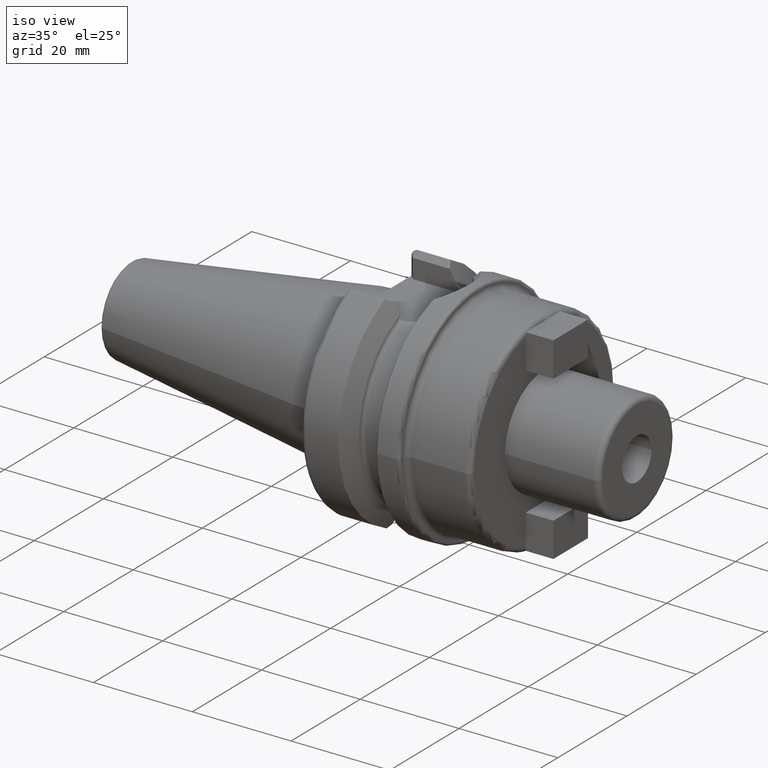
[diagram: clean part render]
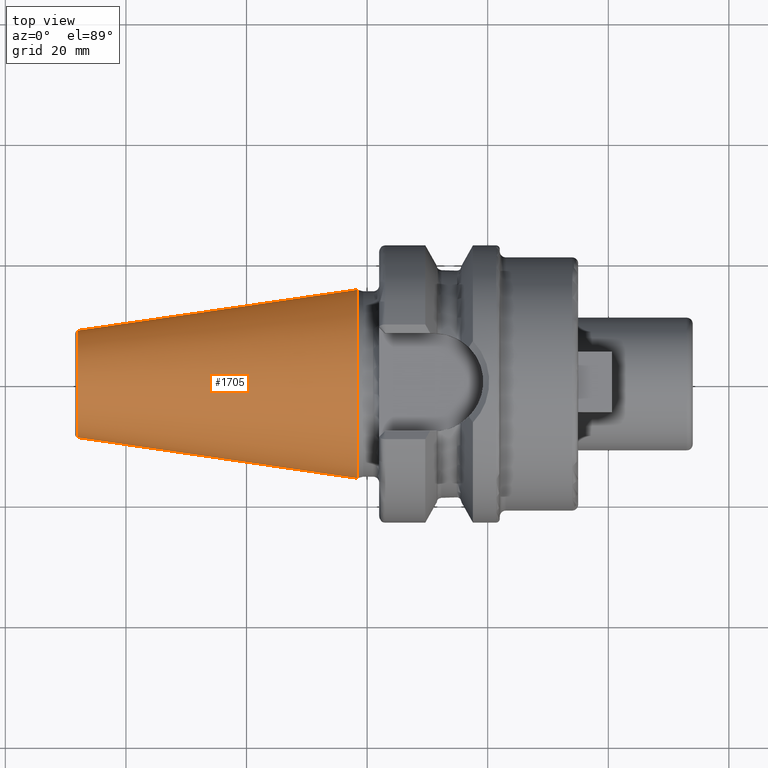
[diagram: tour spotlight — one face highlighted and labeled with its STEP entity id]
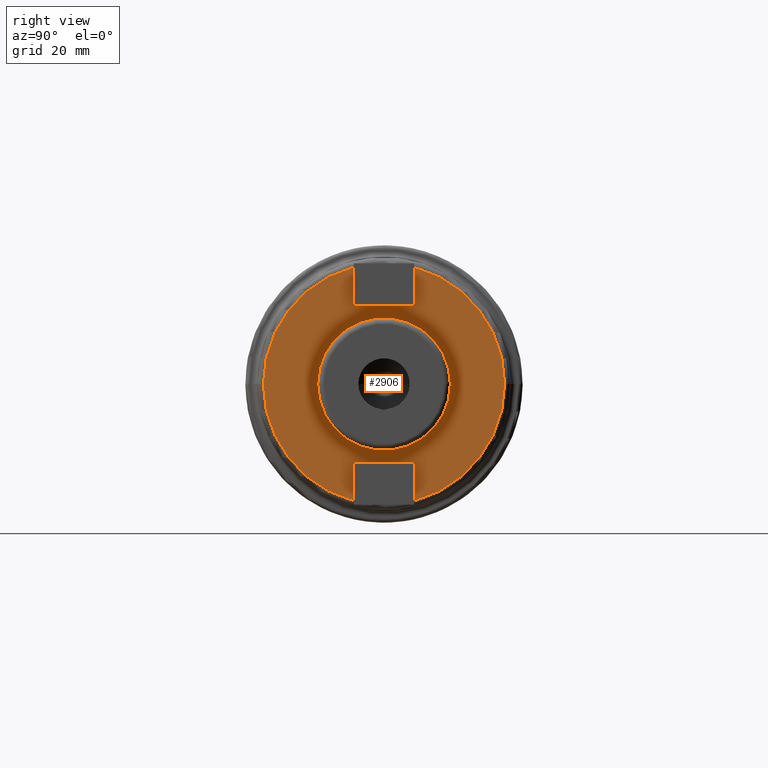
[diagram: tour spotlight — one face highlighted and labeled with its STEP entity id]
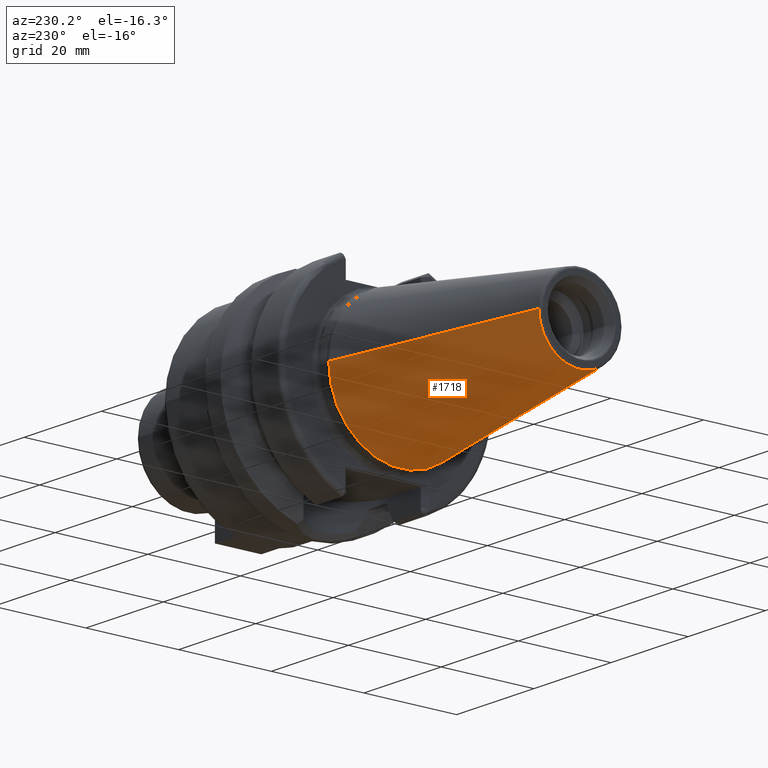
[diagram: tour spotlight — one face highlighted and labeled with its STEP entity id]
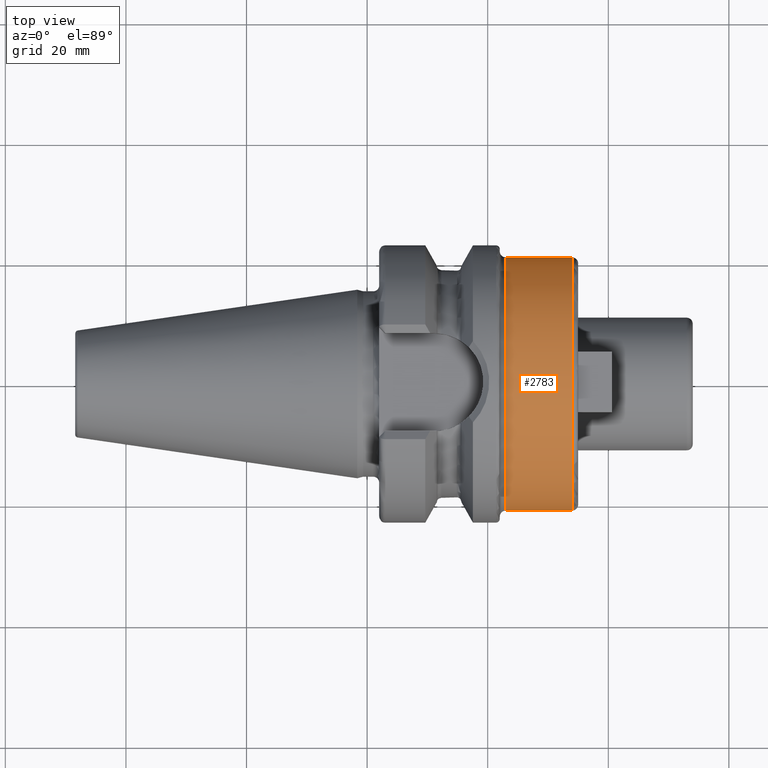
[diagram: tour spotlight — one face highlighted and labeled with its STEP entity id]
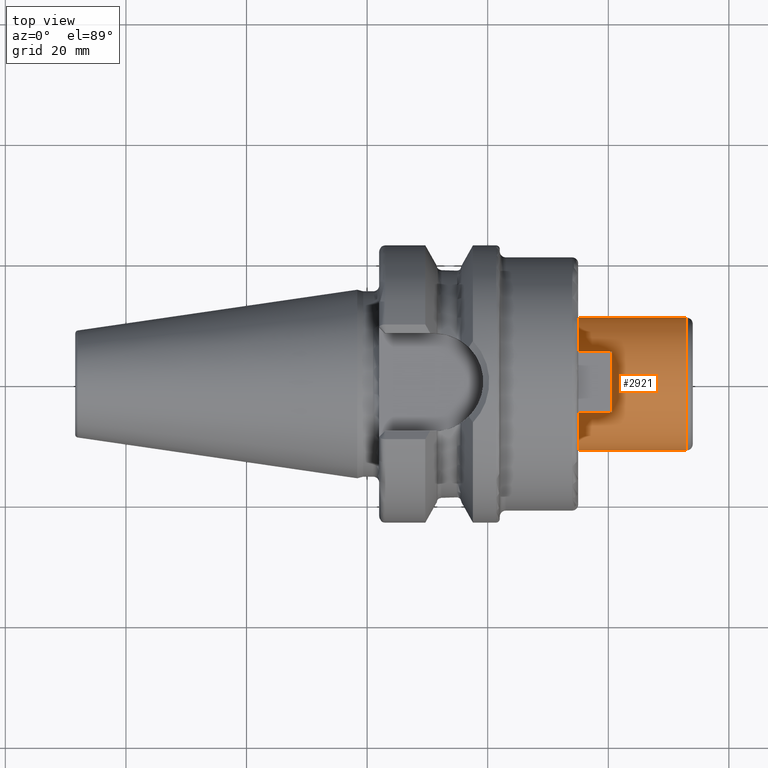
[diagram: tour spotlight — one face highlighted and labeled with its STEP entity id]
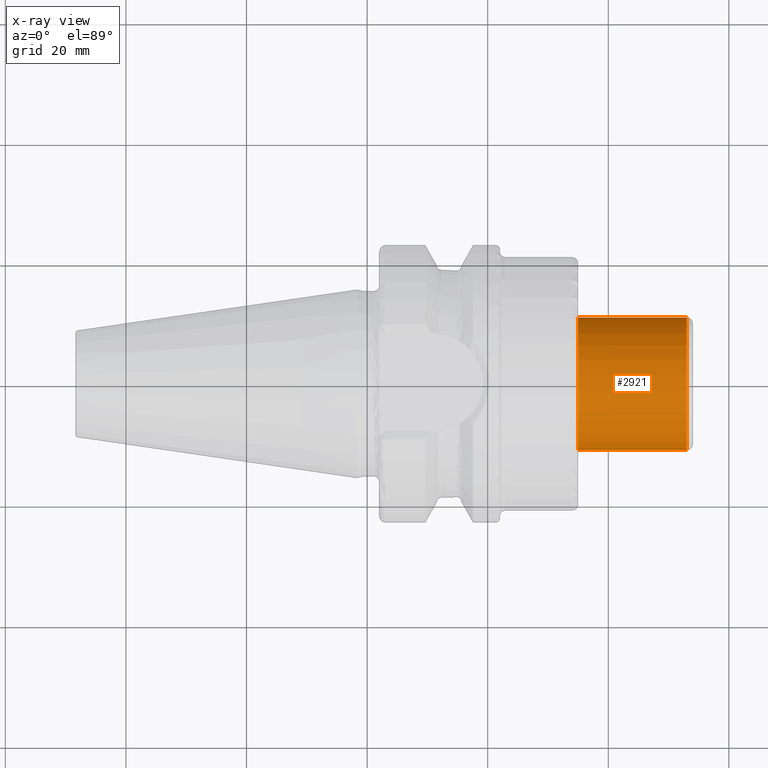
[diagram: x-ray of the same camera — body ghosted, this tour face saturated]
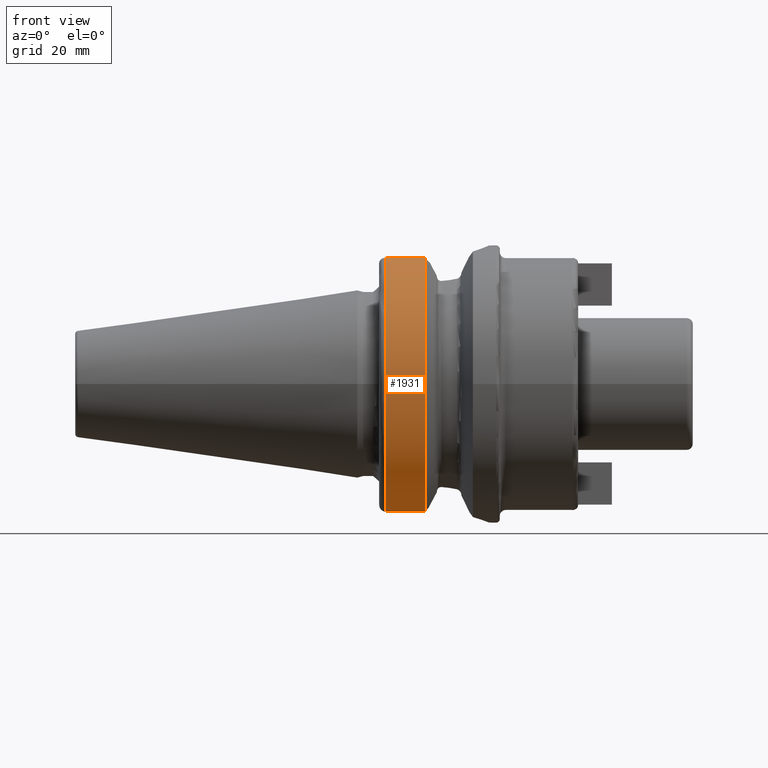
[diagram: tour spotlight — one face highlighted and labeled with its STEP entity id]
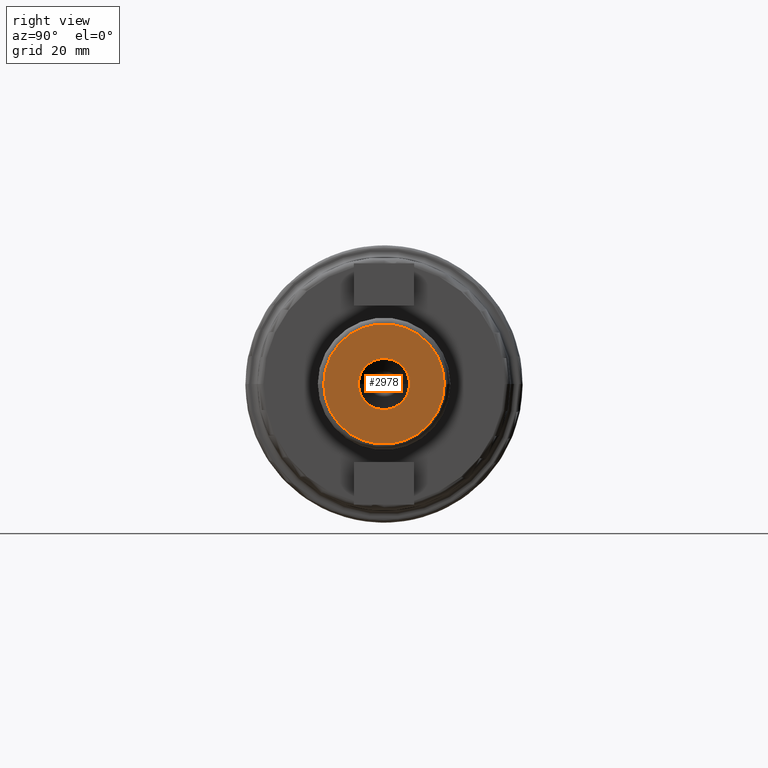
[diagram: tour spotlight — one face highlighted and labeled with its STEP entity id]
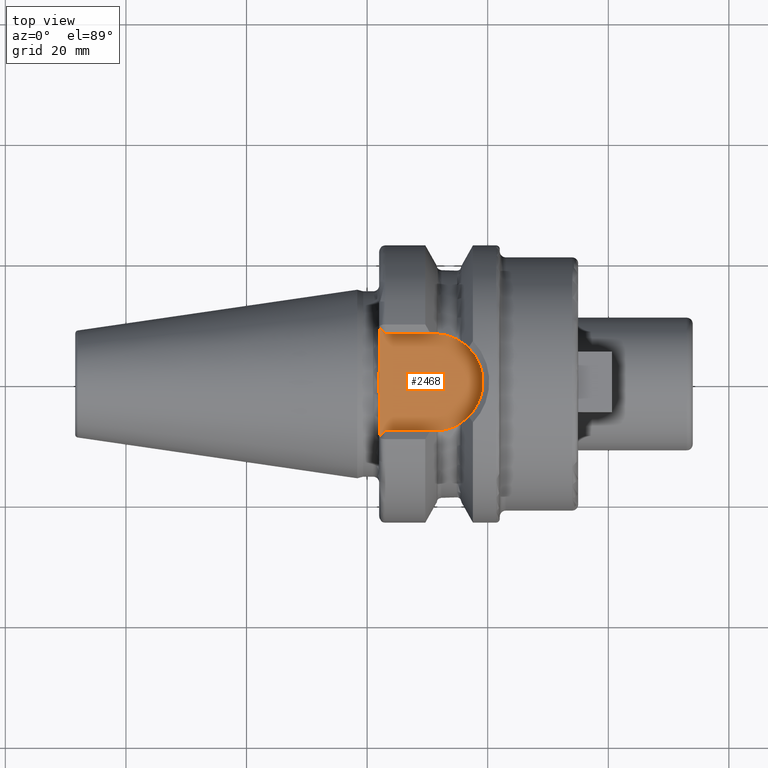
[diagram: tour spotlight — one face highlighted and labeled with its STEP entity id]
A machine part: a face-by-face anatomy tour. The part has 117 B-rep faces; the first image is the clean iso view, then the 8 largest visible faces are spotlighted one at a time (largest first), each with its STEP entity span.

Face 1 — top view, entity #1705. In plain terms, the highlighted conical surface has half-angle 8.298 deg.
Definition (entity closure, byte-faithful):
#37=CARTESIAN_POINT('',(-4.797215933459E1,0.E0,0.E0));
#38=DIRECTION('',(1.E0,0.E0,0.E0));
#39=DIRECTION('',(0.E0,1.E0,0.E0));
#40=AXIS2_PLACEMENT_3D('',#37,#38,#39);
#42=CARTESIAN_POINT('',(-1.629230650827E0,0.E0,0.E0));
#43=DIRECTION('',(1.E0,0.E0,0.E0));
#44=DIRECTION('',(0.E0,1.E0,0.E0));
#45=AXIS2_PLACEMENT_3D('',#42,#43,#44);
#47=DIRECTION('',(-9.895312636440E-1,-1.443186691705E-1,0.E0));
#48=VECTOR('',#47,4.683321324594E1);
#49=CARTESIAN_POINT('',(-1.629230650827E0,1.563738406209E1,0.E0));
#50=LINE('',#49,#48);
#51=DIRECTION('',(-9.895312636440E-1,1.443186691705E-1,0.E0));
#52=VECTOR('',#51,4.683321324594E1);
#53=CARTESIAN_POINT('',(-1.629230650827E0,-1.563738406209E1,0.E0));
#54=LINE('',#53,#52);
#1344=CARTESIAN_POINT('',(-4.797215933459E1,8.878477053461E0,0.E0));
#1346=VERTEX_POINT('',#1344);
#1348=CARTESIAN_POINT('',(-4.797215933459E1,-8.878477053461E0,0.E0));
#1350=VERTEX_POINT('',#1348);
#1559=CARTESIAN_POINT('',(-1.629230650827E0,1.563738406209E1,0.E0));
#1560=VERTEX_POINT('',#1559);
#1561=CARTESIAN_POINT('',(-1.629230650827E0,-1.563738406209E1,0.E0));
#1562=VERTEX_POINT('',#1561);
#1691=CARTESIAN_POINT('',(-2.480069499271E1,0.E0,0.E0));
#1692=DIRECTION('',(1.E0,0.E0,0.E0));
#1693=DIRECTION('',(0.E0,-1.E0,0.E0));
#1694=AXIS2_PLACEMENT_3D('',#1691,#1692,#1693);
#1695=CONICAL_SURFACE('',#1694,1.225793055778E1,8.297826828206E0);
#1697=ORIENTED_EDGE('',*,*,#1696,.F.);
#1699=ORIENTED_EDGE('',*,*,#1698,.T.);
#1701=ORIENTED_EDGE('',*,*,#1700,.T.);
#1702=ORIENTED_EDGE('',*,*,#1684,.F.);
#1703=EDGE_LOOP('',(#1697,#1699,#1701,#1702));
#1704=FACE_OUTER_BOUND('',#1703,.F.);
#1705=ADVANCED_FACE('',(#1704),#1695,.T.);
#41=CIRCLE('',#40,8.878477053461E0);
#46=CIRCLE('',#45,1.563738406209E1);
#1684=EDGE_CURVE('',#1346,#1350,#41,.T.);
#1696=EDGE_CURVE('',#1560,#1346,#50,.T.);
#1698=EDGE_CURVE('',#1560,#1562,#46,.T.);
#1700=EDGE_CURVE('',#1562,#1350,#54,.T.);

Face 2 — right view, entity #2906. In plain terms, the highlighted planar face has unit normal (1, 0, 0).
Definition (entity closure, byte-faithful):
#903=CARTESIAN_POINT('',(3.5E1,0.E0,0.E0));
#904=DIRECTION('',(1.E0,0.E0,0.E0));
#905=DIRECTION('',(0.E0,1.E0,0.E0));
#906=AXIS2_PLACEMENT_3D('',#903,#904,#905);
#908=CARTESIAN_POINT('',(3.5E1,0.E0,0.E0));
#909=DIRECTION('',(-1.E0,0.E0,0.E0));
#910=DIRECTION('',(0.E0,1.E0,0.E0));
#911=AXIS2_PLACEMENT_3D('',#908,#909,#910);
#913=DIRECTION('',(0.E0,0.E0,-1.E0));
#914=VECTOR('',#913,6.364916731037E0);
#915=CARTESIAN_POINT('',(3.5E1,-5.E0,1.936491673104E1));
#916=LINE('',#915,#914);
#917=DIRECTION('',(0.E0,1.E0,0.E0));
#918=VECTOR('',#917,1.E1);
#919=CARTESIAN_POINT('',(3.5E1,-5.E0,1.3E1));
#920=LINE('',#919,#918);
#921=DIRECTION('',(0.E0,0.E0,1.E0));
#922=VECTOR('',#921,6.364916731037E0);
#923=CARTESIAN_POINT('',(3.5E1,5.E0,1.3E1));
#924=LINE('',#923,#922);
#925=CARTESIAN_POINT('',(3.5E1,0.E0,0.E0));
#926=DIRECTION('',(-1.E0,0.E0,0.E0));
#927=DIRECTION('',(0.E0,2.5E-1,9.682458365519E-1));
#928=AXIS2_PLACEMENT_3D('',#925,#926,#927);
#930=CARTESIAN_POINT('',(3.5E1,0.E0,0.E0));
#931=DIRECTION('',(-1.E0,0.E0,0.E0));
#932=DIRECTION('',(0.E0,1.E0,0.E0));
#933=AXIS2_PLACEMENT_3D('',#930,#931,#932);
#935=DIRECTION('',(0.E0,0.E0,1.E0));
#936=VECTOR('',#935,6.364916731037E0);
#937=CARTESIAN_POINT('',(3.5E1,5.E0,-1.936491673104E1));
#938=LINE('',#937,#936);
#939=DIRECTION('',(0.E0,-1.E0,0.E0));
#940=VECTOR('',#939,1.E1);
#941=CARTESIAN_POINT('',(3.5E1,5.E0,-1.3E1));
#942=LINE('',#941,#940);
#943=DIRECTION('',(0.E0,0.E0,-1.E0));
#944=VECTOR('',#943,6.364916731037E0);
#945=CARTESIAN_POINT('',(3.5E1,-5.E0,-1.3E1));
#946=LINE('',#945,#944);
#947=CARTESIAN_POINT('',(3.5E1,0.E0,0.E0));
#948=DIRECTION('',(-1.E0,0.E0,0.E0));
#949=DIRECTION('',(0.E0,-2.5E-1,-9.682458365519E-1));
#950=AXIS2_PLACEMENT_3D('',#947,#948,#949);
#952=CARTESIAN_POINT('',(3.5E1,0.E0,0.E0));
#953=DIRECTION('',(-1.E0,0.E0,0.E0));
#954=DIRECTION('',(0.E0,-1.E0,0.E0));
#955=AXIS2_PLACEMENT_3D('',#952,#953,#954);
#1563=CARTESIAN_POINT('',(3.5E1,1.1E1,0.E0));
#1564=CARTESIAN_POINT('',(3.5E1,-1.1E1,0.E0));
#1565=VERTEX_POINT('',#1563);
#1566=VERTEX_POINT('',#1564);
#1587=CARTESIAN_POINT('',(3.5E1,-2.E1,-1.029243357209E-11));
#1588=VERTEX_POINT('',#1587);
#1589=CARTESIAN_POINT('',(3.5E1,2.E1,1.029643037498E-11));
#1590=VERTEX_POINT('',#1589);
#1625=CARTESIAN_POINT('',(3.5E1,-5.E0,1.936491673104E1));
#1626=CARTESIAN_POINT('',(3.5E1,-5.E0,1.3E1));
#1627=VERTEX_POINT('',#1625);
#1628=VERTEX_POINT('',#1626);
#1629=CARTESIAN_POINT('',(3.5E1,5.E0,1.3E1));
#1630=VERTEX_POINT('',#1629);
#1631=CARTESIAN_POINT('',(3.5E1,5.E0,1.936491673104E1));
#1632=VERTEX_POINT('',#1631);
#1633=CARTESIAN_POINT('',(3.5E1,-5.E0,-1.3E1));
#1634=CARTESIAN_POINT('',(3.5E1,-5.E0,-1.936491673104E1));
#1635=VERTEX_POINT('',#1633);
#1636=VERTEX_POINT('',#1634);
#1637=CARTESIAN_POINT('',(3.5E1,5.E0,-1.936491673104E1));
#1638=CARTESIAN_POINT('',(3.5E1,5.E0,-1.3E1));
#1639=VERTEX_POINT('',#1637);
#1640=VERTEX_POINT('',#1638);
#2876=CARTESIAN_POINT('',(3.5E1,0.E0,0.E0));
#2877=DIRECTION('',(1.E0,0.E0,0.E0));
#2878=DIRECTION('',(0.E0,-1.E0,0.E0));
#2879=AXIS2_PLACEMENT_3D('',#2876,#2877,#2878);
#2880=PLANE('',#2879);
#2882=ORIENTED_EDGE('',*,*,#2881,.T.);
#2884=ORIENTED_EDGE('',*,*,#2883,.T.);
#2885=ORIENTED_EDGE('',*,*,#2864,.T.);
#2886=ORIENTED_EDGE('',*,*,#2800,.T.);
#2888=ORIENTED_EDGE('',*,*,#2887,.T.);
#2890=ORIENTED_EDGE('',*,*,#2889,.T.);
#2892=ORIENTED_EDGE('',*,*,#2891,.T.);
#2894=ORIENTED_EDGE('',*,*,#2893,.T.);
#2896=ORIENTED_EDGE('',*,*,#2895,.T.);
#2897=ORIENTED_EDGE('',*,*,#2793,.T.);
#2898=EDGE_LOOP('',(#2882,#2884,#2885,#2886,#2888,#2890,#2892,#2894,#2896,
#2897));
#2899=FACE_OUTER_BOUND('',#2898,.F.);
#2901=ORIENTED_EDGE('',*,*,#2900,.T.);
#2903=ORIENTED_EDGE('',*,*,#2902,.F.);
#2904=EDGE_LOOP('',(#2901,#2903));
#2905=FACE_BOUND('',#2904,.F.);
#2906=ADVANCED_FACE('',(#2899,#2905),#2880,.T.);
#907=CIRCLE('',#906,1.1E1);
#912=CIRCLE('',#911,1.1E1);
#929=CIRCLE('',#928,2.E1);
#934=CIRCLE('',#933,2.E1);
#951=CIRCLE('',#950,2.E1);
#956=CIRCLE('',#955,2.E1);
#2793=EDGE_CURVE('',#1588,#1627,#956,.T.);
#2800=EDGE_CURVE('',#1632,#1590,#929,.T.);
#2864=EDGE_CURVE('',#1630,#1632,#924,.T.);
#2881=EDGE_CURVE('',#1627,#1628,#916,.T.);
#2883=EDGE_CURVE('',#1628,#1630,#920,.T.);
#2887=EDGE_CURVE('',#1590,#1639,#934,.T.);
#2889=EDGE_CURVE('',#1639,#1640,#938,.T.);
#2891=EDGE_CURVE('',#1640,#1635,#942,.T.);
#2893=EDGE_CURVE('',#1635,#1636,#946,.T.);
#2895=EDGE_CURVE('',#1636,#1588,#951,.T.);
#2900=EDGE_CURVE('',#1565,#1566,#907,.T.);
#2902=EDGE_CURVE('',#1565,#1566,#912,.T.);

Face 3 — auxiliary view, entity #1718. In plain terms, the highlighted conical surface has half-angle 8.298 deg.
Definition (entity closure, byte-faithful):
#32=CARTESIAN_POINT('',(-4.797215933459E1,0.E0,0.E0));
#33=DIRECTION('',(-1.E0,0.E0,0.E0));
#34=DIRECTION('',(0.E0,1.E0,0.E0));
#35=AXIS2_PLACEMENT_3D('',#32,#33,#34);
#47=DIRECTION('',(-9.895312636440E-1,-1.443186691705E-1,0.E0));
#48=VECTOR('',#47,4.683321324594E1);
#49=CARTESIAN_POINT('',(-1.629230650827E0,1.563738406209E1,0.E0));
#50=LINE('',#49,#48);
#51=DIRECTION('',(-9.895312636440E-1,1.443186691705E-1,0.E0));
#52=VECTOR('',#51,4.683321324594E1);
#53=CARTESIAN_POINT('',(-1.629230650827E0,-1.563738406209E1,0.E0));
#54=LINE('',#53,#52);
#55=CARTESIAN_POINT('',(-1.629230650827E0,0.E0,0.E0));
#56=DIRECTION('',(-1.E0,0.E0,0.E0));
#57=DIRECTION('',(0.E0,1.E0,0.E0));
#58=AXIS2_PLACEMENT_3D('',#55,#56,#57);
#1344=CARTESIAN_POINT('',(-4.797215933459E1,8.878477053461E0,0.E0));
#1346=VERTEX_POINT('',#1344);
#1348=CARTESIAN_POINT('',(-4.797215933459E1,-8.878477053461E0,0.E0));
#1350=VERTEX_POINT('',#1348);
#1559=CARTESIAN_POINT('',(-1.629230650827E0,1.563738406209E1,0.E0));
#1560=VERTEX_POINT('',#1559);
#1561=CARTESIAN_POINT('',(-1.629230650827E0,-1.563738406209E1,0.E0));
#1562=VERTEX_POINT('',#1561);
#1706=CARTESIAN_POINT('',(-2.480069499271E1,0.E0,0.E0));
#1707=DIRECTION('',(1.E0,0.E0,0.E0));
#1708=DIRECTION('',(0.E0,-1.E0,0.E0));
#1709=AXIS2_PLACEMENT_3D('',#1706,#1707,#1708);
#1710=CONICAL_SURFACE('',#1709,1.225793055778E1,8.297826828206E0);
#1711=ORIENTED_EDGE('',*,*,#1696,.T.);
#1712=ORIENTED_EDGE('',*,*,#1673,.T.);
#1713=ORIENTED_EDGE('',*,*,#1700,.F.);
#1715=ORIENTED_EDGE('',*,*,#1714,.F.);
#1716=EDGE_LOOP('',(#1711,#1712,#1713,#1715));
#1717=FACE_OUTER_BOUND('',#1716,.F.);
#1718=ADVANCED_FACE('',(#1717),#1710,.T.);
#36=CIRCLE('',#35,8.878477053461E0);
#59=CIRCLE('',#58,1.563738406209E1);
#1673=EDGE_CURVE('',#1346,#1350,#36,.T.);
#1696=EDGE_CURVE('',#1560,#1346,#50,.T.);
#1700=EDGE_CURVE('',#1562,#1350,#54,.T.);
#1714=EDGE_CURVE('',#1560,#1562,#59,.T.);

Face 4 — top view, entity #2783. In plain terms, the highlighted cylindrical surface (partial cylindrical patch) has radius 21 mm, axis along (1, 0, 0).
Definition (entity closure, byte-faithful):
#842=CARTESIAN_POINT('',(3.4E1,0.E0,0.E0));
#843=DIRECTION('',(-1.E0,0.E0,0.E0));
#844=DIRECTION('',(0.E0,-1.E0,0.E0));
#845=AXIS2_PLACEMENT_3D('',#842,#843,#844);
#847=CARTESIAN_POINT('',(2.3E1,0.E0,0.E0));
#848=DIRECTION('',(1.E0,0.E0,0.E0));
#849=DIRECTION('',(0.E0,1.E0,0.E0));
#850=AXIS2_PLACEMENT_3D('',#847,#848,#849);
#1111=DIRECTION('',(-1.E0,0.E0,2.562640756164E-13));
#1112=VECTOR('',#1111,1.1E1);
#1113=CARTESIAN_POINT('',(3.4E1,2.1E1,-3.289083261722E-13));
#1114=LINE('',#1113,#1112);
#1120=DIRECTION('',(-1.E0,0.E0,-2.562534397283E-13));
#1121=VECTOR('',#1120,1.1E1);
#1122=CARTESIAN_POINT('',(3.4E1,-2.1E1,3.282385974539E-13));
#1123=LINE('',#1122,#1121);
#1571=CARTESIAN_POINT('',(2.3E1,-2.1E1,0.E0));
#1572=CARTESIAN_POINT('',(2.3E1,2.1E1,0.E0));
#1573=VERTEX_POINT('',#1571);
#1574=VERTEX_POINT('',#1572);
#1575=CARTESIAN_POINT('',(3.4E1,2.1E1,0.E0));
#1576=CARTESIAN_POINT('',(3.4E1,-2.1E1,0.E0));
#1577=VERTEX_POINT('',#1575);
#1578=VERTEX_POINT('',#1576);
#2769=CARTESIAN_POINT('',(2.04E1,0.E0,0.E0));
#2770=DIRECTION('',(1.E0,0.E0,0.E0));
#2771=DIRECTION('',(0.E0,-1.E0,0.E0));
#2772=AXIS2_PLACEMENT_3D('',#2769,#2770,#2771);
#2773=CYLINDRICAL_SURFACE('',#2772,2.1E1);
#2775=ORIENTED_EDGE('',*,*,#2774,.F.);
#2777=ORIENTED_EDGE('',*,*,#2776,.T.);
#2778=ORIENTED_EDGE('',*,*,#2763,.F.);
#2780=ORIENTED_EDGE('',*,*,#2779,.F.);
#2781=EDGE_LOOP('',(#2775,#2777,#2778,#2780));
#2782=FACE_OUTER_BOUND('',#2781,.F.);
#2783=ADVANCED_FACE('',(#2782),#2773,.T.);
#846=CIRCLE('',#845,2.1E1);
#851=CIRCLE('',#850,2.1E1);
#2763=EDGE_CURVE('',#1574,#1573,#851,.T.);
#2774=EDGE_CURVE('',#1578,#1577,#846,.T.);
#2776=EDGE_CURVE('',#1578,#1573,#1123,.T.);
#2779=EDGE_CURVE('',#1577,#1574,#1114,.T.);

Face 5 — top view, entity #2921. An x-ray twin of the same camera follows (body ghosted, this face saturated) — the face is partly hidden behind the body. In plain terms, the highlighted cylindrical surface (partial cylindrical patch) has radius 11 mm, axis along (1, 0, 0).
Definition (entity closure, byte-faithful):
#903=CARTESIAN_POINT('',(3.5E1,0.E0,0.E0));
#904=DIRECTION('',(1.E0,0.E0,0.E0));
#905=DIRECTION('',(0.E0,1.E0,0.E0));
#906=AXIS2_PLACEMENT_3D('',#903,#904,#905);
#957=CARTESIAN_POINT('',(5.3E1,0.E0,0.E0));
#958=DIRECTION('',(-1.E0,0.E0,0.E0));
#959=DIRECTION('',(0.E0,-1.E0,0.E0));
#960=AXIS2_PLACEMENT_3D('',#957,#958,#959);
#977=DIRECTION('',(-1.E0,0.E0,3.997934565862E-14));
#978=VECTOR('',#977,1.8E1);
#979=CARTESIAN_POINT('',(5.3E1,1.1E1,-7.187301475359E-13));
#980=LINE('',#979,#978);
#981=DIRECTION('',(-1.E0,0.E0,-3.996063577697E-14));
#982=VECTOR('',#981,1.8E1);
#983=CARTESIAN_POINT('',(5.3E1,-1.1E1,7.183933696661E-13));
#984=LINE('',#983,#982);
#1563=CARTESIAN_POINT('',(3.5E1,1.1E1,0.E0));
#1564=CARTESIAN_POINT('',(3.5E1,-1.1E1,0.E0));
#1565=VERTEX_POINT('',#1563);
#1566=VERTEX_POINT('',#1564);
#1579=CARTESIAN_POINT('',(5.3E1,1.1E1,0.E0));
#1580=CARTESIAN_POINT('',(5.3E1,-1.1E1,0.E0));
#1581=VERTEX_POINT('',#1579);
#1582=VERTEX_POINT('',#1580);
#2907=CARTESIAN_POINT('',(2.04E1,0.E0,0.E0));
#2908=DIRECTION('',(1.E0,0.E0,0.E0));
#2909=DIRECTION('',(0.E0,-1.E0,0.E0));
#2910=AXIS2_PLACEMENT_3D('',#2907,#2908,#2909);
#2911=CYLINDRICAL_SURFACE('',#2910,1.1E1);
#2913=ORIENTED_EDGE('',*,*,#2912,.F.);
#2915=ORIENTED_EDGE('',*,*,#2914,.T.);
#2916=ORIENTED_EDGE('',*,*,#2900,.F.);
#2918=ORIENTED_EDGE('',*,*,#2917,.F.);
#2919=EDGE_LOOP('',(#2913,#2915,#2916,#2918));
#2920=FACE_OUTER_BOUND('',#2919,.F.);
#2921=ADVANCED_FACE('',(#2920),#2911,.T.);
#907=CIRCLE('',#906,1.1E1);
#961=CIRCLE('',#960,1.1E1);
#2900=EDGE_CURVE('',#1565,#1566,#907,.T.);
#2912=EDGE_CURVE('',#1582,#1581,#961,.T.);
#2914=EDGE_CURVE('',#1582,#1566,#984,.T.);
#2917=EDGE_CURVE('',#1581,#1565,#980,.T.);

Face 6 — front view, entity #1931. In plain terms, the highlighted cylindrical surface (partial cylindrical patch) has radius 22.99 mm, axis along (1, 0, 0).
Definition (entity closure, byte-faithful):
#190=CARTESIAN_POINT('',(9.650924158743E0,0.E0,0.E0));
#191=DIRECTION('',(1.E0,0.E0,0.E0));
#192=DIRECTION('',(0.E0,-4.135970895862E-1,9.104600197075E-1));
#193=AXIS2_PLACEMENT_3D('',#190,#191,#192);
#195=DIRECTION('',(9.999999999953E-1,1.691137854943E-6,-2.559578267743E-6));
#196=VECTOR('',#195,6.650924186073E0);
#197=CARTESIAN_POINT('',(2.999999972701E0,-9.014923952472E0,-2.114877606078E1));
#198=LINE('',#197,#196);
#199=CARTESIAN_POINT('',(3.E0,0.E0,0.E0));
#200=DIRECTION('',(-1.E0,0.E0,0.E0));
#201=DIRECTION('',(0.E0,-3.921232146517E-1,-9.199127048428E-1));
#202=AXIS2_PLACEMENT_3D('',#199,#200,#201);
#204=DIRECTION('',(-9.999999999877E-1,2.689360368572E-6,4.174830096868E-6));
#205=VECTOR('',#204,6.650924175867E0);
#206=CARTESIAN_POINT('',(9.650924158743E0,-9.508597089586E0,2.093147585308E1));
#207=LINE('',#206,#205);
#612=CARTESIAN_POINT('',(2.999999972701E0,-9.014923952472E0,-2.114877606078E1));
#1510=CARTESIAN_POINT('',(9.650924158743E0,-9.508597089586E0,2.093147585308E1));
#1511=CARTESIAN_POINT('',(9.650924158743E0,-9.014912704843E0,
-2.114879308434E1));
#1512=VERTEX_POINT('',#1510);
#1513=VERTEX_POINT('',#1511);
#1526=CARTESIAN_POINT('',(3.E0,-9.508621994147E0,2.093146453960E1));
#1527=VERTEX_POINT('',#1526);
#1548=VERTEX_POINT('',#612);
#1917=CARTESIAN_POINT('',(-5.192E1,0.E0,0.E0));
#1918=DIRECTION('',(1.E0,0.E0,0.E0));
#1919=DIRECTION('',(0.E0,-1.E0,0.E0));
#1920=AXIS2_PLACEMENT_3D('',#1917,#1918,#1919);
#1921=CYLINDRICAL_SURFACE('',#1920,2.299E1);
#1922=ORIENTED_EDGE('',*,*,#1906,.T.);
#1924=ORIENTED_EDGE('',*,*,#1923,.F.);
#1926=ORIENTED_EDGE('',*,*,#1925,.T.);
#1928=ORIENTED_EDGE('',*,*,#1927,.F.);
#1929=EDGE_LOOP('',(#1922,#1924,#1926,#1928));
#1930=FACE_OUTER_BOUND('',#1929,.F.);
#1931=ADVANCED_FACE('',(#1930),#1921,.T.);
#194=CIRCLE('',#193,2.299E1);
#203=CIRCLE('',#202,2.299E1);
#1906=EDGE_CURVE('',#1512,#1513,#194,.T.);
#1923=EDGE_CURVE('',#1548,#1513,#198,.T.);
#1925=EDGE_CURVE('',#1548,#1527,#203,.T.);
#1927=EDGE_CURVE('',#1512,#1527,#207,.T.);

Face 7 — right view, entity #2978. In plain terms, the highlighted planar face has unit normal (1, 0, 0).
Definition (entity closure, byte-faithful):
#985=CARTESIAN_POINT('',(5.4E1,0.E0,0.E0));
#986=DIRECTION('',(-1.E0,0.E0,0.E0));
#987=DIRECTION('',(0.E0,1.E0,0.E0));
#988=AXIS2_PLACEMENT_3D('',#985,#986,#987);
#990=CARTESIAN_POINT('',(5.4E1,0.E0,0.E0));
#991=DIRECTION('',(-1.E0,0.E0,0.E0));
#992=DIRECTION('',(0.E0,-1.E0,0.E0));
#993=AXIS2_PLACEMENT_3D('',#990,#991,#992);
#995=CARTESIAN_POINT('',(5.4E1,0.E0,0.E0));
#996=DIRECTION('',(1.E0,0.E0,0.E0));
#997=DIRECTION('',(0.E0,-1.E0,0.E0));
#998=AXIS2_PLACEMENT_3D('',#995,#996,#997);
#1000=CARTESIAN_POINT('',(5.4E1,0.E0,0.E0));
#1001=DIRECTION('',(1.E0,0.E0,0.E0));
#1002=DIRECTION('',(0.E0,1.E0,0.E0));
#1003=AXIS2_PLACEMENT_3D('',#1000,#1001,#1002);
#1583=CARTESIAN_POINT('',(5.4E1,1.E1,0.E0));
#1584=CARTESIAN_POINT('',(5.4E1,-1.E1,0.E0));
#1585=VERTEX_POINT('',#1583);
#1586=VERTEX_POINT('',#1584);
#1597=CARTESIAN_POINT('',(5.4E1,-4.25E0,0.E0));
#1598=CARTESIAN_POINT('',(5.4E1,4.25E0,0.E0));
#1599=VERTEX_POINT('',#1597);
#1600=VERTEX_POINT('',#1598);
#2963=CARTESIAN_POINT('',(5.4E1,0.E0,0.E0));
#2964=DIRECTION('',(1.E0,0.E0,0.E0));
#2965=DIRECTION('',(0.E0,-1.E0,0.E0));
#2966=AXIS2_PLACEMENT_3D('',#2963,#2964,#2965);
#2967=PLANE('',#2966);
#2968=ORIENTED_EDGE('',*,*,#2945,.T.);
#2969=ORIENTED_EDGE('',*,*,#2930,.T.);
#2970=EDGE_LOOP('',(#2968,#2969));
#2971=FACE_OUTER_BOUND('',#2970,.F.);
#2973=ORIENTED_EDGE('',*,*,#2972,.T.);
#2975=ORIENTED_EDGE('',*,*,#2974,.T.);
#2976=EDGE_LOOP('',(#2973,#2975));
#2977=FACE_BOUND('',#2976,.F.);
#2978=ADVANCED_FACE('',(#2971,#2977),#2967,.T.);
#989=CIRCLE('',#988,1.E1);
#994=CIRCLE('',#993,1.E1);
#999=CIRCLE('',#998,4.25E0);
#1004=CIRCLE('',#1003,4.25E0);
#2930=EDGE_CURVE('',#1586,#1585,#994,.T.);
#2945=EDGE_CURVE('',#1585,#1586,#989,.T.);
#2972=EDGE_CURVE('',#1599,#1600,#999,.T.);
#2974=EDGE_CURVE('',#1600,#1599,#1004,.T.);

Face 8 — top view, entity #2468. In plain terms, the highlighted planar face has unit normal (0, 0, 1).
Definition (entity closure, byte-faithful):
#666=DIRECTION('',(1.E0,0.E0,0.E0));
#667=VECTOR('',#666,8.155E0);
#668=CARTESIAN_POINT('',(3.E0,-8.095E0,1.615E1));
#669=LINE('',#668,#667);
#670=DIRECTION('',(0.E0,1.E0,0.E0));
#671=VECTOR('',#670,6.389796680469E0);
#672=CARTESIAN_POINT('',(2.E0,-9.095E0,1.615E1));
#673=LINE('',#672,#671);
#674=DIRECTION('',(0.E0,1.E0,0.E0));
#675=VECTOR('',#674,6.389796680469E0);
#676=CARTESIAN_POINT('',(2.E0,2.705203319531E0,1.615E1));
#677=LINE('',#676,#675);
#678=DIRECTION('',(-1.E0,0.E0,0.E0));
#679=VECTOR('',#678,8.155E0);
#680=CARTESIAN_POINT('',(1.1155E1,8.095E0,1.615E1));
#681=LINE('',#680,#679);
#682=CARTESIAN_POINT('',(1.1155E1,0.E0,1.615E1));
#683=DIRECTION('',(0.E0,0.E0,1.E0));
#684=DIRECTION('',(0.E0,-1.E0,0.E0));
#685=AXIS2_PLACEMENT_3D('',#682,#683,#684);
#691=DIRECTION('',(7.071067811865E-1,7.071067811865E-1,0.E0));
#692=VECTOR('',#691,1.414213562373E0);
#693=CARTESIAN_POINT('',(2.E0,-9.095E0,1.615E1));
#694=LINE('',#693,#692);
#700=CARTESIAN_POINT('',(2.E0,-2.705203319531E0,1.615E1));
#701=CARTESIAN_POINT('',(2.E0,-2.447526606637E0,1.615E1));
#702=CARTESIAN_POINT('',(1.994666808080E0,-1.932209003238E0,1.615E1));
#703=CARTESIAN_POINT('',(1.982373677751E0,-1.159353659083E0,1.615E1));
#704=CARTESIAN_POINT('',(1.974023153496E0,-3.864772813160E-1,1.615E1));
#705=CARTESIAN_POINT('',(1.974022947076E0,3.864455623798E-1,1.615E1));
#706=CARTESIAN_POINT('',(1.982373315251E0,1.159330607264E0,1.615E1));
#707=CARTESIAN_POINT('',(1.994666672292E0,1.932198796230E0,1.615E1));
#708=CARTESIAN_POINT('',(2.E0,2.447523240700E0,1.615E1));
#709=CARTESIAN_POINT('',(2.E0,2.705203319531E0,1.615E1));
#716=DIRECTION('',(-7.071067811865E-1,7.071067811865E-1,0.E0));
#717=VECTOR('',#716,1.414213562373E0);
#718=CARTESIAN_POINT('',(3.E0,8.095E0,1.615E1));
#719=LINE('',#718,#717);
#1482=CARTESIAN_POINT('',(1.1155E1,-8.095E0,1.615E1));
#1483=CARTESIAN_POINT('',(1.1155E1,8.095E0,1.615E1));
#1484=VERTEX_POINT('',#1482);
#1485=VERTEX_POINT('',#1483);
#1486=CARTESIAN_POINT('',(2.E0,2.705203319531E0,1.615E1));
#1487=VERTEX_POINT('',#1486);
#1488=CARTESIAN_POINT('',(2.E0,-2.705203319531E0,1.615E1));
#1489=VERTEX_POINT('',#1488);
#1519=CARTESIAN_POINT('',(3.E0,-8.095E0,1.615E1));
#1521=VERTEX_POINT('',#1519);
#1523=CARTESIAN_POINT('',(2.E0,-9.095E0,1.615E1));
#1525=VERTEX_POINT('',#1523);
#1532=CARTESIAN_POINT('',(2.E0,9.095E0,1.615E1));
#1533=VERTEX_POINT('',#1532);
#1534=CARTESIAN_POINT('',(3.E0,8.095E0,1.615E1));
#1536=VERTEX_POINT('',#1534);
#2450=CARTESIAN_POINT('',(0.E0,0.E0,1.615E1));
#2451=DIRECTION('',(0.E0,0.E0,1.E0));
#2452=DIRECTION('',(1.E0,0.E0,0.E0));
#2453=AXIS2_PLACEMENT_3D('',#2450,#2451,#2452);
#2454=PLANE('',#2453);
#2455=ORIENTED_EDGE('',*,*,#2221,.F.);
#2457=ORIENTED_EDGE('',*,*,#2456,.F.);
#2458=ORIENTED_EDGE('',*,*,#1827,.T.);
#2460=ORIENTED_EDGE('',*,*,#2459,.T.);
#2461=ORIENTED_EDGE('',*,*,#1805,.T.);
#2463=ORIENTED_EDGE('',*,*,#2462,.F.);
#2464=ORIENTED_EDGE('',*,*,#2442,.F.);
#2465=ORIENTED_EDGE('',*,*,#2190,.F.);
#2466=EDGE_LOOP('',(#2455,#2457,#2458,#2460,#2461,#2463,#2464,#2465));
#2467=FACE_OUTER_BOUND('',#2466,.F.);
#2468=ADVANCED_FACE('',(#2467),#2454,.T.);
#686=CIRCLE('',#685,8.095E0);
#710=B_SPLINE_CURVE_WITH_KNOTS('',3,(#700,#701,#702,#703,#704,#705,#706,#707,
#708,#709),.UNSPECIFIED.,.F.,.F.,(4,1,1,1,1,1,1,4),(0.E0,1.428571428571E-1,
2.857142857143E-1,4.285714285714E-1,5.714285714286E-1,7.142857142857E-1,
8.571428571429E-1,1.E0),.UNSPECIFIED.);
#1805=EDGE_CURVE('',#1487,#1533,#677,.T.);
#1827=EDGE_CURVE('',#1525,#1489,#673,.T.);
#2190=EDGE_CURVE('',#1484,#1485,#686,.T.);
#2221=EDGE_CURVE('',#1521,#1484,#669,.T.);
#2442=EDGE_CURVE('',#1485,#1536,#681,.T.);
#2456=EDGE_CURVE('',#1525,#1521,#694,.T.);
#2459=EDGE_CURVE('',#1489,#1487,#710,.T.);
#2462=EDGE_CURVE('',#1536,#1533,#719,.T.);